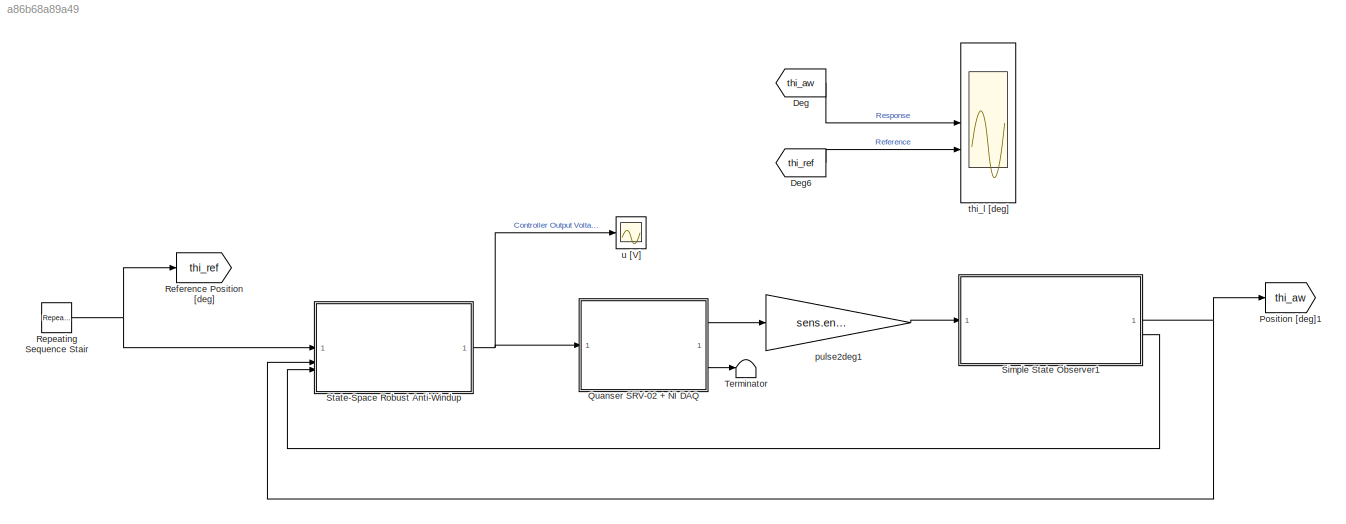
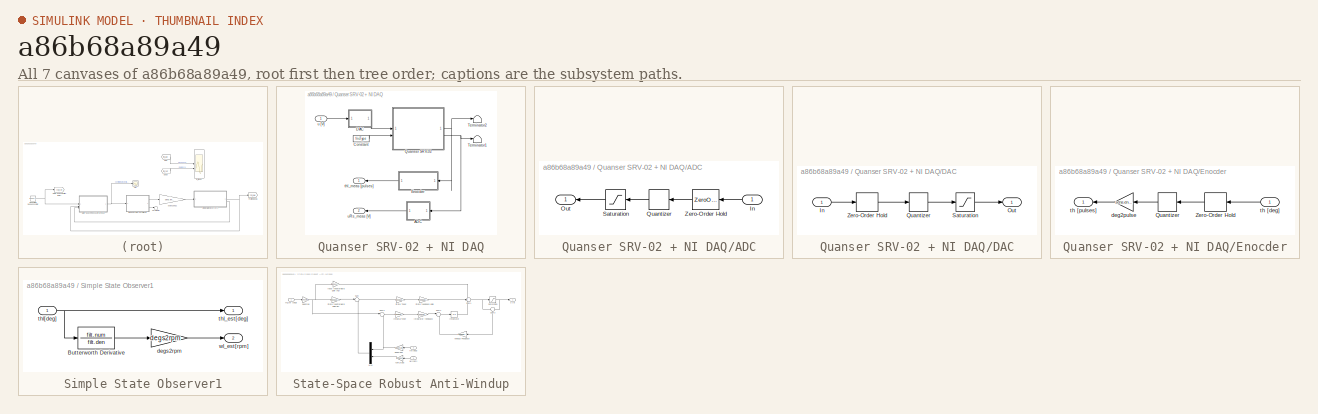
[diagram: thumbnail index - all 7 canvases of the model, root first then tree order]
MODEL slx_a86b68a89a49
KIND model
CONFIG AbsTol = auto
CONFIG EnableMultiTasking = off
CONFIG FixedStep = auto
CONFIG MaxStep = auto
CONFIG MinStep = auto
CONFIG RelTol = auto
CONFIG SampleTimeConstraint = Unconstrained
CONFIG SolverName = ode45
CONFIG StartTime = 0.0
CONFIG StopTime = 0.1
BLOCK [From] Deg
  GotoTag = thi_aw
BLOCK [From] Deg6
  GotoTag = thi_ref
BLOCK [Goto] Position [deg]1
  GotoTag = thi_aw
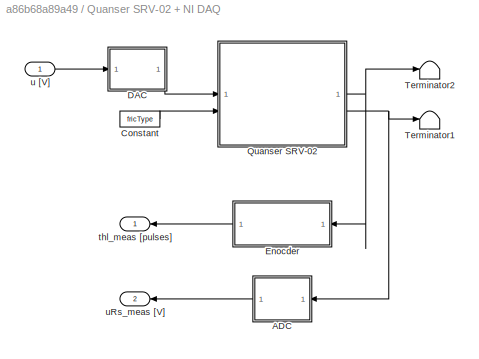
BLOCK [SubSystem] Quanser SRV-02 + NI DAQ
BLOCK [SubSystem] Quanser SRV-02 + NI DAQ/ADC
BLOCK [Inport] Quanser SRV-02 + NI DAQ/ADC/In
BLOCK [Outport] Quanser SRV-02 + NI DAQ/ADC/Out
BLOCK [Quantizer] Quanser SRV-02 + NI DAQ/ADC/Quantizer
  QuantizationInterval = daq.adc.q
BLOCK [Saturate] Quanser SRV-02 + NI DAQ/ADC/Saturation
  LowerLimit = -daq.adc.fs
  UpperLimit = daq.adc.fs
BLOCK [ZeroOrderHold] Quanser SRV-02 + NI DAQ/ADC/Zero-Order Hold
  SampleTime = Ts
BLOCK [Constant] Quanser SRV-02 + NI DAQ/Constant
  Value = fricType
BLOCK [SubSystem] Quanser SRV-02 + NI DAQ/DAC
BLOCK [Inport] Quanser SRV-02 + NI DAQ/DAC/In
BLOCK [Outport] Quanser SRV-02 + NI DAQ/DAC/Out
BLOCK [Quantizer] Quanser SRV-02 + NI DAQ/DAC/Quantizer
  QuantizationInterval = daq.dac.q
BLOCK [Saturate] Quanser SRV-02 + NI DAQ/DAC/Saturation
  LowerLimit = -daq.dac.fs
  UpperLimit = daq.dac.fs
BLOCK [ZeroOrderHold] Quanser SRV-02 + NI DAQ/DAC/Zero-Order Hold
  SampleTime = Ts
BLOCK [SubSystem] Quanser SRV-02 + NI DAQ/Enocder
BLOCK [Quantizer] Quanser SRV-02 + NI DAQ/Enocder/Quantizer
  QuantizationInterval = sens.enc.pulse2deg
BLOCK [ZeroOrderHold] Quanser SRV-02 + NI DAQ/Enocder/Zero-Order Hold
  SampleTime = Ts
BLOCK [Gain] Quanser SRV-02 + NI DAQ/Enocder/deg2pulse
  Gain = sens.enc.deg2pulse
BLOCK [Inport] Quanser SRV-02 + NI DAQ/Enocder/th [deg]
BLOCK [Outport] Quanser SRV-02 + NI DAQ/Enocder/th [pulses]
BLOCK [ModelReference] Quanser SRV-02 + NI DAQ/Quanser SRV-02
  CopyOfModelProtected = on
  ModelNameDialog = SRV02IL_win64.slxp
  ModelReferenceVersion = 1.44
BLOCK [Terminator] Quanser SRV-02 + NI DAQ/Terminator1
BLOCK [Terminator] Quanser SRV-02 + NI DAQ/Terminator2
BLOCK [Outport] Quanser SRV-02 + NI DAQ/thl_meas [pulses]
BLOCK [Inport] Quanser SRV-02 + NI DAQ/u [V]
BLOCK [Outport] Quanser SRV-02 + NI DAQ/uRs_meas [V]
  Port = 2
BLOCK [Goto] Reference Position [deg]
  GotoTag = thi_ref
  NameLocation = top
BLOCK [Reference] Repeating Sequence Stair  REF=simulink/Sources/Repeating
Sequence
Stair
  SourceBlock = simulink/Sources/Repeating\nSequence\nStair
  SourceType = Repeating Sequence Stair
BLOCK [SubSystem] Simple State Observer1
BLOCK [TransferFcn] Simple State Observer1/Butterworth Derivative
  Denominator = filt.den
  Numerator = filt.num
BLOCK [Gain] Simple State Observer1/degs2rpm
  Gain = degs2rpm
BLOCK [Inport] Simple State Observer1/thl[deg]
BLOCK [Outport] Simple State Observer1/thl_est[deg]
BLOCK [Outport] Simple State Observer1/wl_est[rpm]
  Port = 2
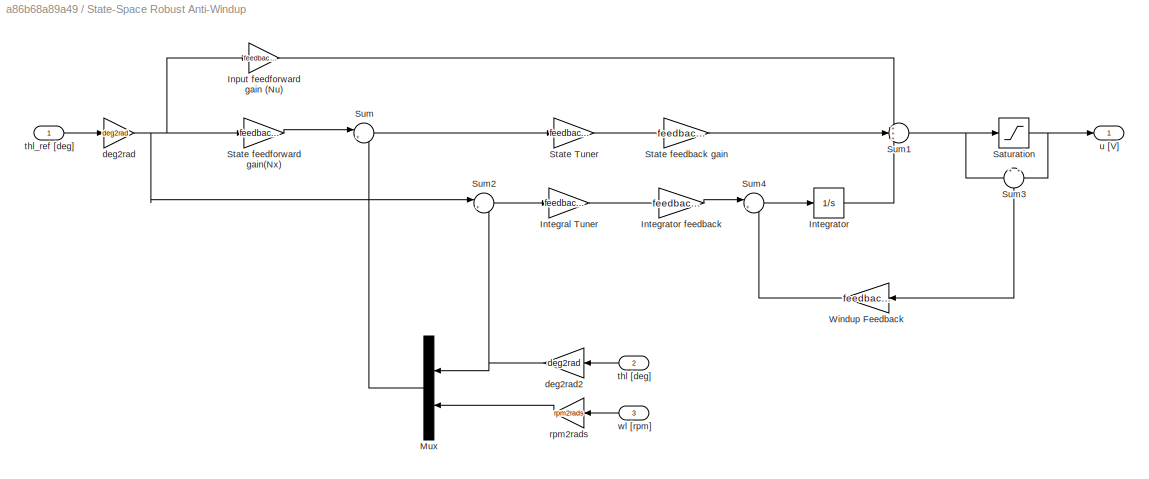
BLOCK [SubSystem] State-Space Robust Anti-Windup
BLOCK [Gain] State-Space Robust Anti-Windup/Input feedforward gain (Nu)
  Gain = feedback.Nu
BLOCK [Gain] State-Space Robust Anti-Windup/Integral Tuner
  Gain = feedback.Int_Tune
BLOCK [Integrator] State-Space Robust Anti-Windup/Integrator
BLOCK [Gain] State-Space Robust Anti-Windup/Integrator feedback
  Gain = feedback.Ki
BLOCK [Mux] State-Space Robust Anti-Windup/Mux
  DisplayOption = bar
  Inputs = 2
  NameLocation = top
BLOCK [Saturate] State-Space Robust Anti-Windup/Saturation
  LowerLimit = -10
  UpperLimit = 10
BLOCK [Gain] State-Space Robust Anti-Windup/State Tuner
  Gain = feedback.State_Tune
BLOCK [Gain] State-Space Robust Anti-Windup/State feedback gain
  Gain = feedback.K
  Multiplication = Matrix(K*u)
BLOCK [Gain] State-Space Robust Anti-Windup/State feedforward gain(Nx)
  Gain = feedback.Nx
BLOCK [Sum] State-Space Robust Anti-Windup/Sum
  Inputs = |+-
BLOCK [Sum] State-Space Robust Anti-Windup/Sum1
  Inputs = +++
BLOCK [Sum] State-Space Robust Anti-Windup/Sum2
  Inputs = |+-
BLOCK [Sum] State-Space Robust Anti-Windup/Sum3
  Inputs = +|+
  NameLocation = left
BLOCK [Sum] State-Space Robust Anti-Windup/Sum4
  Inputs = |+-
BLOCK [Gain] State-Space Robust Anti-Windup/Windup Feedback
  Gain = feedback.Kw
BLOCK [Gain] State-Space Robust Anti-Windup/deg2rad
  Gain = deg2rad
BLOCK [Gain] State-Space Robust Anti-Windup/deg2rad2
  Gain = deg2rad
  NameLocation = top
BLOCK [Gain] State-Space Robust Anti-Windup/rpm2rads
  Gain = rpm2rads
  NameLocation = top
BLOCK [Inport] State-Space Robust Anti-Windup/thl [deg]
  NameLocation = top
  Port = 2
BLOCK [Inport] State-Space Robust Anti-Windup/thl_ref [deg]
BLOCK [Outport] State-Space Robust Anti-Windup/u [V]
BLOCK [Inport] State-Space Robust Anti-Windup/wl [rpm]
  NameLocation = top
  Port = 3
BLOCK [Terminator] Terminator
BLOCK [Gain] pulse2deg1
  Gain = sens.enc.pulse2deg
BLOCK [Scope] thi_l [deg]
  Floating = off
  NumInputPorts = 2
  ScopeSpecificationString = Simulink.scopes.TimeScopeBlockCfg('CurrentConfiguration', extmgr.ConfigurationSet(extmgr.Configuration('Core','General UI',true),extmgr.Configuration('Core','Source UI',true),extmgr.Configuration('Sources','WiredSimulink',true,'DataLogging',true,'DataLoggingSaveFormat','StructureWithTime'),extmgr.Configuration('Visuals','Time Domain',true,'SerializedDisplays',{struct('MinYLimReal','-13.095','MaxYL...<+1641ch>
BLOCK [Scope] u [V]
  Floating = off
  NumInputPorts = 1
  ScopeSpecificationString = Simulink.scopes.TimeScopeBlockCfg('CurrentConfiguration', extmgr.ConfigurationSet(extmgr.Configuration('Core','General UI',true),extmgr.Configuration('Core','Source UI',true),extmgr.Configuration('Sources','WiredSimulink',true,'DataLoggingVariableName','ScopeData1','DataLogging',true,'DataLoggingSaveFormat','StructureWithTime'),extmgr.Configuration('Visuals','Time Domain',true,'SerializedDisplays'...<+1573ch>
LINE Deg6:1 -> thi_l [deg]:2
LINE Deg:1 -> thi_l [deg]:1
LINE Quanser SRV-02 + NI DAQ/ADC/In:1 -> Quanser SRV-02 + NI DAQ/ADC/Zero-Order Hold:1
LINE Quanser SRV-02 + NI DAQ/ADC/Quantizer:1 -> Quanser SRV-02 + NI DAQ/ADC/Saturation:1
LINE Quanser SRV-02 + NI DAQ/ADC/Saturation:1 -> Quanser SRV-02 + NI DAQ/ADC/Out:1
LINE Quanser SRV-02 + NI DAQ/ADC/Zero-Order Hold:1 -> Quanser SRV-02 + NI DAQ/ADC/Quantizer:1
LINE Quanser SRV-02 + NI DAQ/ADC:1 -> Quanser SRV-02 + NI DAQ/uRs_meas [V]:1
LINE Quanser SRV-02 + NI DAQ/Constant:1 -> Quanser SRV-02 + NI DAQ/Quanser SRV-02:2
LINE Quanser SRV-02 + NI DAQ/DAC/In:1 -> Quanser SRV-02 + NI DAQ/DAC/Zero-Order Hold:1
LINE Quanser SRV-02 + NI DAQ/DAC/Quantizer:1 -> Quanser SRV-02 + NI DAQ/DAC/Saturation:1
LINE Quanser SRV-02 + NI DAQ/DAC/Saturation:1 -> Quanser SRV-02 + NI DAQ/DAC/Out:1
LINE Quanser SRV-02 + NI DAQ/DAC/Zero-Order Hold:1 -> Quanser SRV-02 + NI DAQ/DAC/Quantizer:1
LINE Quanser SRV-02 + NI DAQ/DAC:1 -> Quanser SRV-02 + NI DAQ/Quanser SRV-02:1
LINE Quanser SRV-02 + NI DAQ/Enocder/Quantizer:1 -> Quanser SRV-02 + NI DAQ/Enocder/deg2pulse:1
LINE Quanser SRV-02 + NI DAQ/Enocder/Zero-Order Hold:1 -> Quanser SRV-02 + NI DAQ/Enocder/Quantizer:1
LINE Quanser SRV-02 + NI DAQ/Enocder/deg2pulse:1 -> Quanser SRV-02 + NI DAQ/Enocder/th [pulses]:1
LINE Quanser SRV-02 + NI DAQ/Enocder/th [deg]:1 -> Quanser SRV-02 + NI DAQ/Enocder/Zero-Order Hold:1
LINE Quanser SRV-02 + NI DAQ/Enocder:1 -> Quanser SRV-02 + NI DAQ/thl_meas [pulses]:1
NET Quanser SRV-02 + NI DAQ/Quanser SRV-02:1 -> Quanser SRV-02 + NI DAQ/Enocder:1, Quanser SRV-02 + NI DAQ/Terminator2:1
NET Quanser SRV-02 + NI DAQ/Quanser SRV-02:2 -> Quanser SRV-02 + NI DAQ/ADC:1, Quanser SRV-02 + NI DAQ/Terminator1:1
LINE Quanser SRV-02 + NI DAQ/u [V]:1 -> Quanser SRV-02 + NI DAQ/DAC:1
LINE Quanser SRV-02 + NI DAQ:1 -> pulse2deg1:1
LINE Quanser SRV-02 + NI DAQ:2 -> Terminator:1
NET Repeating Sequence Stair:1 -> Reference Position [deg]:1, State-Space Robust Anti-Windup:1
LINE Simple State Observer1/Butterworth Derivative:1 -> Simple State Observer1/degs2rpm:1
LINE Simple State Observer1/degs2rpm:1 -> Simple State Observer1/wl_est[rpm]:1
NET Simple State Observer1/thl[deg]:1 -> Simple State Observer1/Butterworth Derivative:1, Simple State Observer1/thl_est[deg]:1
NET Simple State Observer1:1 -> Position [deg]1:1, State-Space Robust Anti-Windup:2
LINE Simple State Observer1:2 -> State-Space Robust Anti-Windup:3
LINE State-Space Robust Anti-Windup/Input feedforward gain (Nu):1 -> State-Space Robust Anti-Windup/Sum1:1
LINE State-Space Robust Anti-Windup/Integral Tuner:1 -> State-Space Robust Anti-Windup/Integrator feedback:1
LINE State-Space Robust Anti-Windup/Integrator feedback:1 -> State-Space Robust Anti-Windup/Sum4:1
LINE State-Space Robust Anti-Windup/Integrator:1 -> State-Space Robust Anti-Windup/Sum1:3
LINE State-Space Robust Anti-Windup/Mux:1 -> State-Space Robust Anti-Windup/Sum:2
NET State-Space Robust Anti-Windup/Saturation:1 -> State-Space Robust Anti-Windup/Sum3:2, State-Space Robust Anti-Windup/u [V]:1
LINE State-Space Robust Anti-Windup/State Tuner:1 -> State-Space Robust Anti-Windup/State feedback gain:1
LINE State-Space Robust Anti-Windup/State feedback gain:1 -> State-Space Robust Anti-Windup/Sum1:2
LINE State-Space Robust Anti-Windup/State feedforward gain(Nx):1 -> State-Space Robust Anti-Windup/Sum:1
NET State-Space Robust Anti-Windup/Sum1:1 -> State-Space Robust Anti-Windup/Saturation:1, State-Space Robust Anti-Windup/Sum3:1
LINE State-Space Robust Anti-Windup/Sum2:1 -> State-Space Robust Anti-Windup/Integral Tuner:1
LINE State-Space Robust Anti-Windup/Sum3:1 -> State-Space Robust Anti-Windup/Windup Feedback:1
LINE State-Space Robust Anti-Windup/Sum4:1 -> State-Space Robust Anti-Windup/Integrator:1
LINE State-Space Robust Anti-Windup/Sum:1 -> State-Space Robust Anti-Windup/State Tuner:1
LINE State-Space Robust Anti-Windup/Windup Feedback:1 -> State-Space Robust Anti-Windup/Sum4:2
NET State-Space Robust Anti-Windup/deg2rad2:1 -> State-Space Robust Anti-Windup/Mux:1, State-Space Robust Anti-Windup/Sum2:2
NET State-Space Robust Anti-Windup/deg2rad:1 -> State-Space Robust Anti-Windup/Input feedforward gain (Nu):1, State-Space Robust Anti-Windup/State feedforward gain(Nx):1, State-Space Robust Anti-Windup/Sum2:1
LINE State-Space Robust Anti-Windup/rpm2rads:1 -> State-Space Robust Anti-Windup/Mux:2
LINE State-Space Robust Anti-Windup/thl [deg]:1 -> State-Space Robust Anti-Windup/deg2rad2:1
LINE State-Space Robust Anti-Windup/thl_ref [deg]:1 -> State-Space Robust Anti-Windup/deg2rad:1
LINE State-Space Robust Anti-Windup/wl [rpm]:1 -> State-Space Robust Anti-Windup/rpm2rads:1
NET State-Space Robust Anti-Windup:1 -> Quanser SRV-02 + NI DAQ:1, u [V]:1
LINE pulse2deg1:1 -> Simple State Observer1:1
note: NET lines group one-source signal fan-out (src -> all destinations, sorted); 1:1 wires keep LINE
